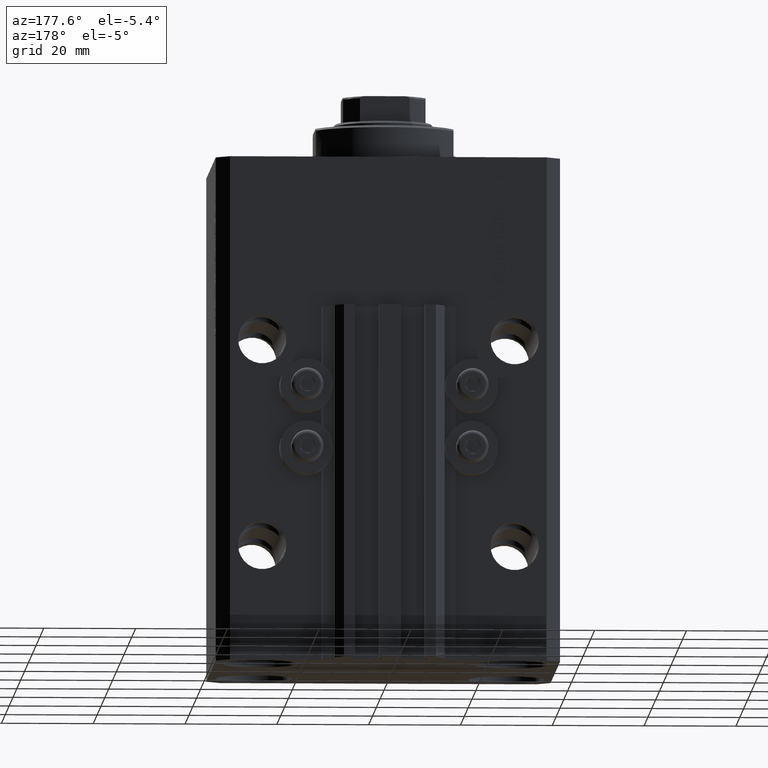
[diagram: clean part render]
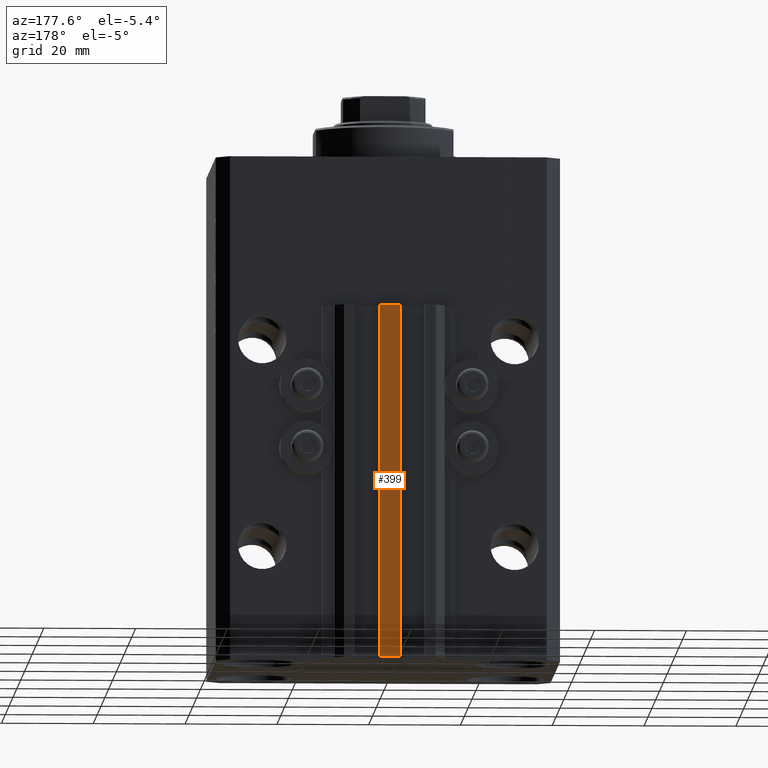
[diagram: same view with one face highlighted and labeled with its STEP entity id]
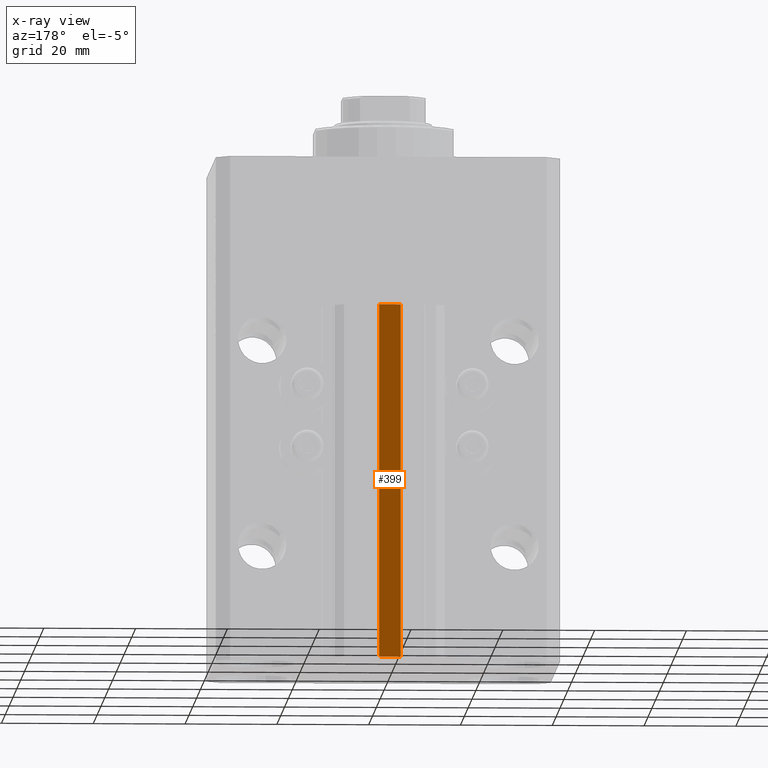
[diagram: x-ray of the same camera — body ghosted, the highlighted face saturated]
A machine part, auxiliary view. The second image highlights one B-rep face of the part: STEP entity #399.
The next image is the same camera in x-ray: the body ghosted, the highlighted face saturated — about 0% of this face is hidden behind the body in this view.
In plain terms, the highlighted planar face has unit normal (0, -1, 0).
Its self-contained STEP definition (entity closure, byte-faithful):
#399 = ADVANCED_FACE ( 'NONE', ( #21399 ), #21167, .F. ) ;
#3966 = VERTEX_POINT ( 'NONE', #22832 ) ;
#6893 = LINE ( 'NONE', #17891, #13018 ) ;
#7150 = AXIS2_PLACEMENT_3D ( 'NONE', #35751, #42949, #18281 ) ;
#12694 = VERTEX_POINT ( 'NONE', #41781 ) ;
#13018 = VECTOR ( 'NONE', #32479, 1000.000000000000000 ) ;
#13766 = EDGE_CURVE ( 'NONE', #18124, #12694, #42177, .T. ) ;
#14659 = EDGE_CURVE ( 'NONE', #18124, #42005, #31501, .T. ) ;
#16413 = ORIENTED_EDGE ( 'NONE', *, *, #19044, .F. ) ;
#17891 = CARTESIAN_POINT ( 'NONE',  ( 2.349999999999999645, 35.50000000000001421, -110.0000000000000000 ) ) ;
#18124 = VERTEX_POINT ( 'NONE', #25688 ) ;
#18281 = DIRECTION ( 'NONE',  ( 0.000000000000000000, -0.000000000000000000, -1.000000000000000000 ) ) ;
#19044 = EDGE_CURVE ( 'NONE', #12694, #3966, #6893, .T. ) ;
#19112 = CARTESIAN_POINT ( 'NONE',  ( -2.350000000000003642, 35.50000000000001421, -33.00000000000000000 ) ) ;
#20587 = VECTOR ( 'NONE', #24322, 1000.000000000000000 ) ;
#21167 = PLANE ( 'NONE',  #7150 ) ;
#21399 = FACE_OUTER_BOUND ( 'NONE', #22562, .T. ) ;
#21926 = CARTESIAN_POINT ( 'NONE',  ( -2.350000000000003642, 35.50000000000001421, -33.00000000000000000 ) ) ;
#22562 = EDGE_LOOP ( 'NONE', ( #31985, #16413, #34955, #29091 ) ) ;
#22832 = CARTESIAN_POINT ( 'NONE',  ( 2.349999999999999645, 35.50000000000001421, -33.00000000000000000 ) ) ;
#24322 = DIRECTION ( 'NONE',  ( 0.000000000000000000, 0.000000000000000000, 1.000000000000000000 ) ) ;
#24397 = VECTOR ( 'NONE', #38337, 1000.000000000000000 ) ;
#25688 = CARTESIAN_POINT ( 'NONE',  ( -2.350000000000003642, 35.50000000000001421, -110.0000000000000000 ) ) ;
#27766 = VECTOR ( 'NONE', #47084, 1000.000000000000000 ) ;
#29091 = ORIENTED_EDGE ( 'NONE', *, *, #14659, .T. ) ;
#31501 = LINE ( 'NONE', #43001, #20587 ) ;
#31985 = ORIENTED_EDGE ( 'NONE', *, *, #45131, .T. ) ;
#32479 = DIRECTION ( 'NONE',  ( 0.000000000000000000, 0.000000000000000000, 1.000000000000000000 ) ) ;
#34955 = ORIENTED_EDGE ( 'NONE', *, *, #13766, .F. ) ;
#35672 = CARTESIAN_POINT ( 'NONE',  ( -2.350000000000003642, 35.50000000000001421, -110.0000000000000000 ) ) ;
#35751 = CARTESIAN_POINT ( 'NONE',  ( -2.350000000000003642, 35.50000000000001421, -110.0000000000000000 ) ) ;
#35807 = LINE ( 'NONE', #21926, #27766 ) ;
#38337 = DIRECTION ( 'NONE',  ( 1.000000000000000000, 0.000000000000000000, 0.000000000000000000 ) ) ;
#41781 = CARTESIAN_POINT ( 'NONE',  ( 2.349999999999999645, 35.50000000000001421, -110.0000000000000000 ) ) ;
#42005 = VERTEX_POINT ( 'NONE', #19112 ) ;
#42177 = LINE ( 'NONE', #35672, #24397 ) ;
#42949 = DIRECTION ( 'NONE',  ( 0.000000000000000000, -1.000000000000000000, 0.000000000000000000 ) ) ;
#43001 = CARTESIAN_POINT ( 'NONE',  ( -2.350000000000003642, 35.50000000000001421, -110.0000000000000000 ) ) ;
#45131 = EDGE_CURVE ( 'NONE', #42005, #3966, #35807, .T. ) ;
#47084 = DIRECTION ( 'NONE',  ( 1.000000000000000000, 0.000000000000000000, 0.000000000000000000 ) ) ;